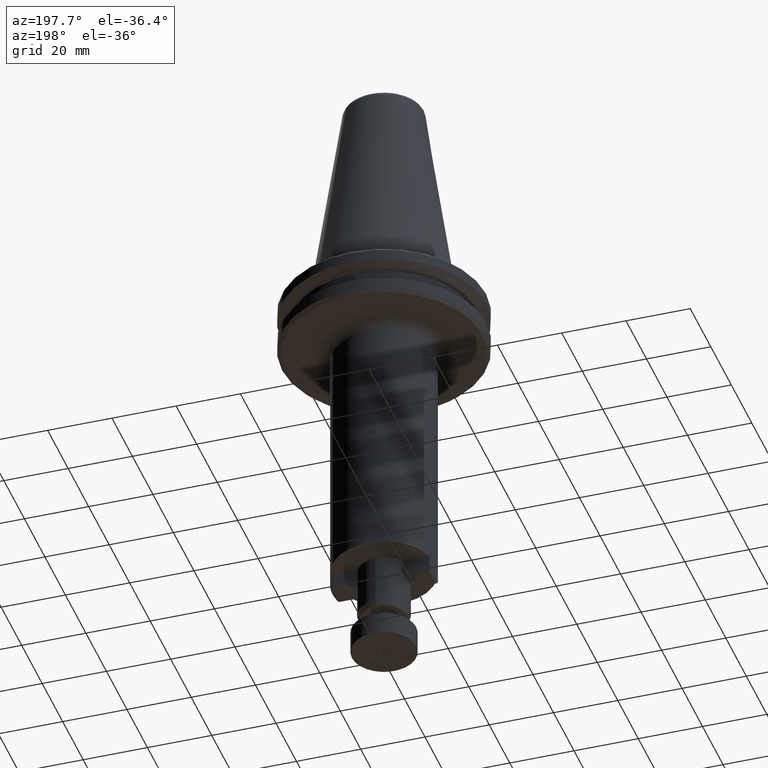
[diagram: clean part render]
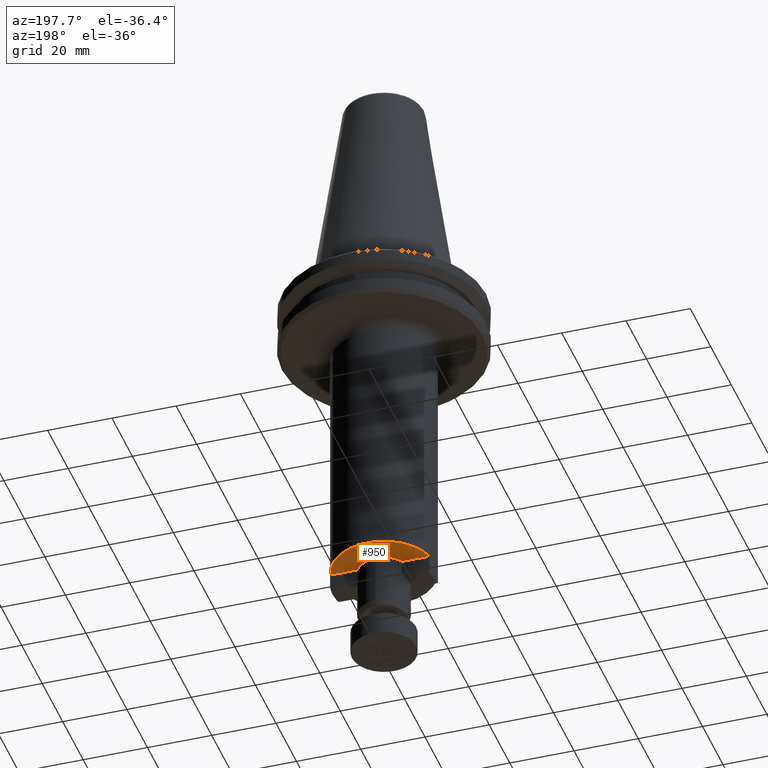
[diagram: same view with one face highlighted and labeled with its STEP entity id]
A machine part, auxiliary view. The second image highlights one B-rep face of the part: STEP entity #950.
In plain terms, the highlighted planar face has unit normal (0, -0, 1).
Its self-contained STEP definition (entity closure, byte-faithful):
#67 = CARTESIAN_POINT ( 'NONE',  ( 0.0000000000000000000, 0.0000000000000000000, -99.99999999919998600 ) ) ;
#86 = CARTESIAN_POINT ( 'NONE',  ( 15.49193338482818300, 4.000000000005749200, -99.99999999919998600 ) ) ;
#94 = CIRCLE ( 'NONE', #1256, 8.000000000000000000 ) ;
#127 = VECTOR ( 'NONE', #2103, 1000.000000000000000 ) ;
#213 = LINE ( 'NONE', #561, #127 ) ;
#214 = EDGE_LOOP ( 'NONE', ( #943, #1336, #1724, #699, #453 ) ) ;
#216 = AXIS2_PLACEMENT_3D ( 'NONE', #67, #861, #1643 ) ;
#273 = VERTEX_POINT ( 'NONE', #1444 ) ;
#304 = VECTOR ( 'NONE', #896, 1000.000000000000000 ) ;
#453 = ORIENTED_EDGE ( 'NONE', *, *, #1100, .F. ) ;
#498 = LINE ( 'NONE', #2148, #304 ) ;
#561 = CARTESIAN_POINT ( 'NONE',  ( 15.67783658500000000, 4.000000000029462700, -99.99999999999998600 ) ) ;
#571 = CARTESIAN_POINT ( 'NONE',  ( 0.0000000000000000000, 16.00000000000000000, -99.99999999919998600 ) ) ;
#653 = DIRECTION ( 'NONE',  ( 0.0000000000000000000, 0.0000000000000000000, -1.000000000000000000 ) ) ;
#699 = ORIENTED_EDGE ( 'NONE', *, *, #1177, .F. ) ;
#700 = DIRECTION ( 'NONE',  ( 1.000000000000000000, 0.0000000000000000000, 0.0000000000000000000 ) ) ;
#861 = DIRECTION ( 'NONE',  ( -0.0000000000000000000, -0.0000000000000000000, 1.000000000000000000 ) ) ;
#891 = AXIS2_PLACEMENT_3D ( 'NONE', #571, #1721, #1003 ) ;
#896 = DIRECTION ( 'NONE',  ( 1.000000000000000000, -0.0000000000000000000, -0.0000000000000000000 ) ) ;
#943 = ORIENTED_EDGE ( 'NONE', *, *, #2080, .F. ) ;
#950 = ADVANCED_FACE ( 'NONE', ( #1919 ), #1727, .F. ) ;
#971 = VERTEX_POINT ( 'NONE', #2016 ) ;
#992 = AXIS2_PLACEMENT_3D ( 'NONE', #2022, #1041, #2207 ) ;
#1003 = DIRECTION ( 'NONE',  ( 1.000000000000000000, 0.0000000000000000000, 0.0000000000000000000 ) ) ;
#1041 = DIRECTION ( 'NONE',  ( 0.0000000000000000000, 0.0000000000000000000, -1.000000000000000000 ) ) ;
#1100 = EDGE_CURVE ( 'NONE', #971, #1911, #498, .T. ) ;
#1154 = EDGE_CURVE ( 'NONE', #273, #1217, #213, .T. ) ;
#1177 = EDGE_CURVE ( 'NONE', #1911, #1204, #94, .T. ) ;
#1204 = VERTEX_POINT ( 'NONE', #1947 ) ;
#1217 = VERTEX_POINT ( 'NONE', #86 ) ;
#1256 = AXIS2_PLACEMENT_3D ( 'NONE', #2067, #653, #700 ) ;
#1336 = ORIENTED_EDGE ( 'NONE', *, *, #1154, .F. ) ;
#1384 = CIRCLE ( 'NONE', #216, 16.00000000000000000 ) ;
#1444 = CARTESIAN_POINT ( 'NONE',  ( 6.928203230249995000, 4.000000000036826500, -100.0000000012499900 ) ) ;
#1573 = CIRCLE ( 'NONE', #992, 8.000000000000000000 ) ;
#1631 = EDGE_CURVE ( 'NONE', #1204, #273, #1573, .T. ) ;
#1643 = DIRECTION ( 'NONE',  ( 1.000000000000000000, 0.0000000000000000000, 0.0000000000000000000 ) ) ;
#1721 = DIRECTION ( 'NONE',  ( 0.0000000000000000000, -0.0000000000000000000, 1.000000000000000000 ) ) ;
#1724 = ORIENTED_EDGE ( 'NONE', *, *, #1631, .F. ) ;
#1727 = PLANE ( 'NONE',  #891 ) ;
#1804 = CARTESIAN_POINT ( 'NONE',  ( -6.928203230152635500, 4.000000000106411800, -100.0000000020999900 ) ) ;
#1911 = VERTEX_POINT ( 'NONE', #1804 ) ;
#1919 = FACE_OUTER_BOUND ( 'NONE', #214, .T. ) ;
#1947 = CARTESIAN_POINT ( 'NONE',  ( 9.797174393178825700E-016, 7.999999999999986700, -99.99999999919998600 ) ) ;
#2016 = CARTESIAN_POINT ( 'NONE',  ( -15.49193338483232900, 3.999999999989692200, -99.99999999919998600 ) ) ;
#2022 = CARTESIAN_POINT ( 'NONE',  ( 0.0000000000000000000, -1.346818213794620100E-014, -99.99999999919998600 ) ) ;
#2067 = CARTESIAN_POINT ( 'NONE',  ( 0.0000000000000000000, -1.346818213794620100E-014, -99.99999999919998600 ) ) ;
#2080 = EDGE_CURVE ( 'NONE', #1217, #971, #1384, .T. ) ;
#2103 = DIRECTION ( 'NONE',  ( 1.000000000000000000, -0.0000000000000000000, -0.0000000000000000000 ) ) ;
#2148 = CARTESIAN_POINT ( 'NONE',  ( -6.928203230000002000, 4.000000000000000000, -99.99999999919998600 ) ) ;
#2207 = DIRECTION ( 'NONE',  ( 1.000000000000000000, -8.881784197001250400E-016, 0.0000000000000000000 ) ) ;